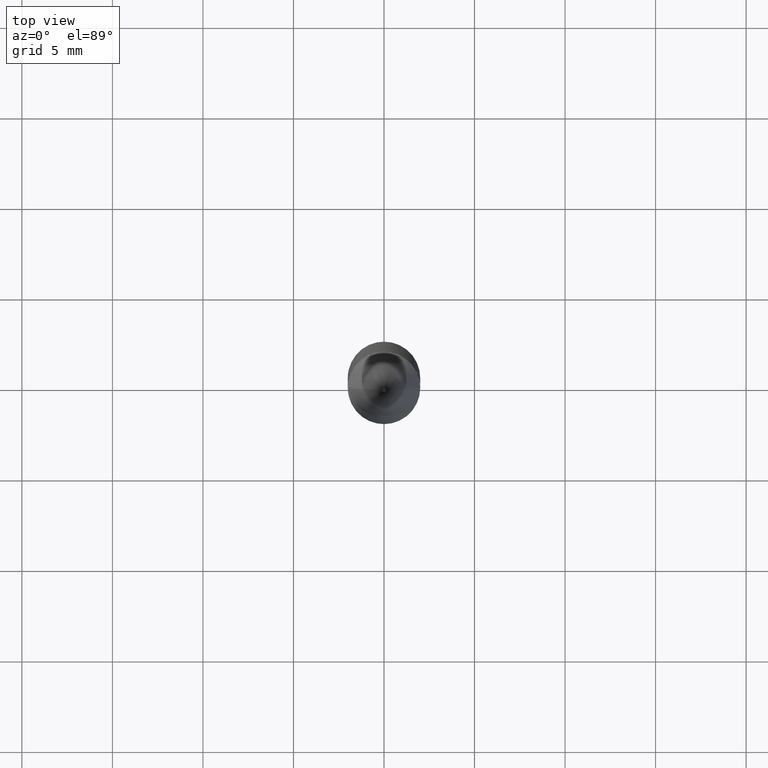
[diagram: clean part render]
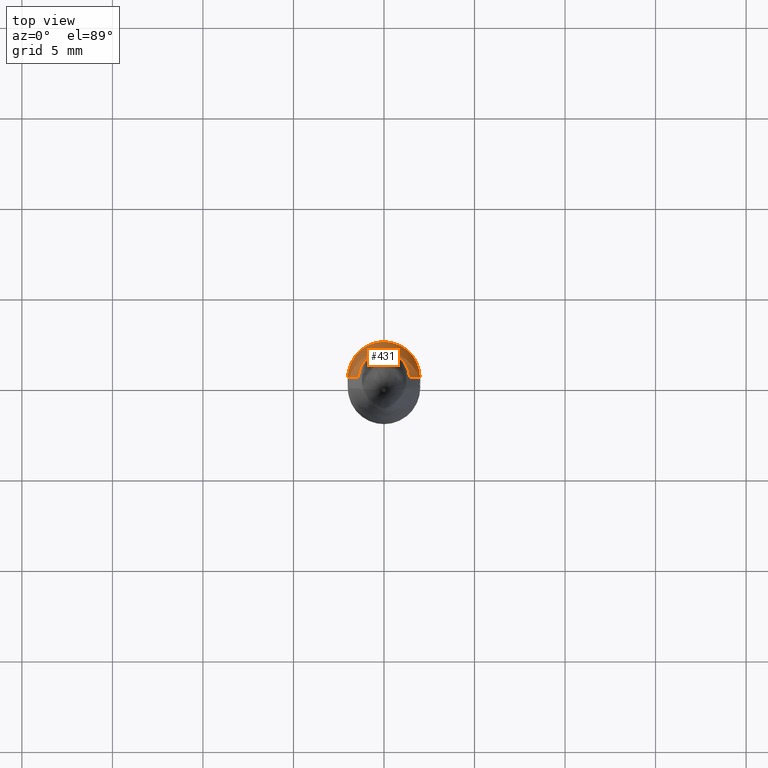
[diagram: same view with one face highlighted and labeled with its STEP entity id]
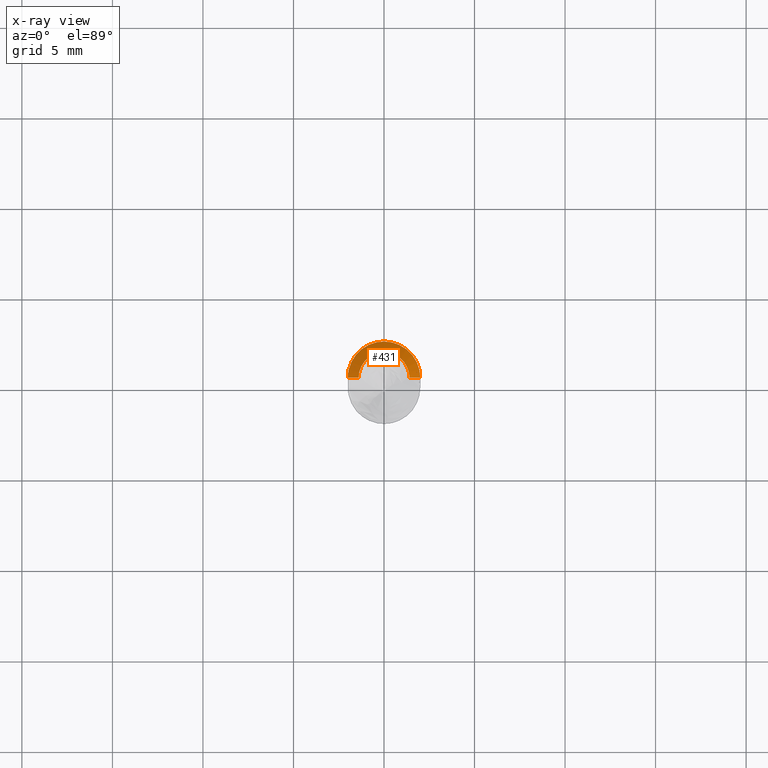
[diagram: x-ray of the same camera — body ghosted, the highlighted face saturated]
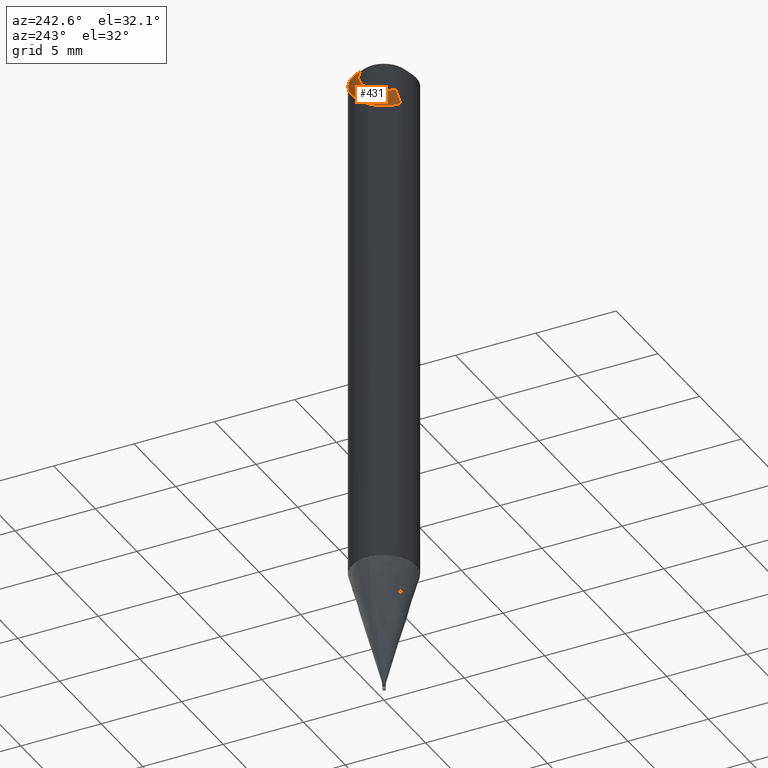
[diagram: same view with one face highlighted and labeled with its STEP entity id]
A machine part, top view. The second image highlights one B-rep face of the part: STEP entity #431.
The next image is the same camera in x-ray: the body ghosted, the highlighted face saturated — about 0% of this face is hidden behind the body in this view.
A second angle (auxiliary view) of the same face is appended — the face is thin or edge-on in the first view.
In plain terms, the highlighted face is a freeform B-spline surface patch.
Its self-contained STEP definition (entity closure, byte-faithful):
#200=CARTESIAN_POINT('',(2.0,0.0,31.81));
#201=CARTESIAN_POINT('',(2.0,2.0,31.81));
#202=CARTESIAN_POINT('',(0.0,2.0,31.81));
#203=CARTESIAN_POINT('',(-2.0,2.0,31.81));
#204=CARTESIAN_POINT('',(-2.0,0.0,31.81));
#205=CARTESIAN_POINT('',(1.4,0.0,32.41));
#206=CARTESIAN_POINT('',(1.4,1.4,32.41));
#207=CARTESIAN_POINT('',(0.0,1.4,32.41));
#208=CARTESIAN_POINT('',(-1.4,1.4,32.41));
#209=CARTESIAN_POINT('',(-1.4,0.0,32.41));
#412=(
BOUNDED_SURFACE()
B_SPLINE_SURFACE(1,2,(
(#200,#201,#202,#203,#204),
(#205,#206,#207,#208,#209)
), .UNSPECIFIED.,.F.,.F.,.F.)
B_SPLINE_SURFACE_WITH_KNOTS((2,2),(3,2,3),(
0.0,1.0),(
0.0,0.5,1.0), .UNSPECIFIED.)
GEOMETRIC_REPRESENTATION_ITEM()
RATIONAL_B_SPLINE_SURFACE(((1.0,0.707106781187,1.0,0.707106781187,1.0),
(1.0,0.707106781187,1.0,0.707106781187,1.0)
))
REPRESENTATION_ITEM('')
SURFACE()
);
#413=(
BOUNDED_CURVE()
B_SPLINE_CURVE(1,(#205,#200),.UNSPECIFIED.,.F.,.F.)
B_SPLINE_CURVE_WITH_KNOTS((2,2),
(0.0,1.0),.UNSPECIFIED.)
CURVE()
GEOMETRIC_REPRESENTATION_ITEM()
RATIONAL_B_SPLINE_CURVE((1.0,1.0))
REPRESENTATION_ITEM('')
);
#414=(
BOUNDED_CURVE()
B_SPLINE_CURVE(2,(#200,#201,#202,#203,#204),.UNSPECIFIED.,.F.,.F.)
B_SPLINE_CURVE_WITH_KNOTS((3,2,3),
(0.0,0.5,1.0),.UNSPECIFIED.)
CURVE()
GEOMETRIC_REPRESENTATION_ITEM()
RATIONAL_B_SPLINE_CURVE((1.0,0.707106781187,1.0,0.707106781187,1.0))
REPRESENTATION_ITEM('')
);
#415=(
BOUNDED_CURVE()
B_SPLINE_CURVE(1,(#204,#209),.UNSPECIFIED.,.F.,.F.)
B_SPLINE_CURVE_WITH_KNOTS((2,2),
(0.0,1.0),.UNSPECIFIED.)
CURVE()
GEOMETRIC_REPRESENTATION_ITEM()
RATIONAL_B_SPLINE_CURVE((1.0,1.0))
REPRESENTATION_ITEM('')
);
#416=(
BOUNDED_CURVE()
B_SPLINE_CURVE(2,(#209,#208,#207,#206,#205),.UNSPECIFIED.,.F.,.F.)
B_SPLINE_CURVE_WITH_KNOTS((3,2,3),
(0.0,0.5,1.0),.UNSPECIFIED.)
CURVE()
GEOMETRIC_REPRESENTATION_ITEM()
RATIONAL_B_SPLINE_CURVE((1.0,0.707106781187,1.0,0.707106781187,1.0))
REPRESENTATION_ITEM('')
);
#417=VERTEX_POINT('',#200);
#418=VERTEX_POINT('',#204);
#419=VERTEX_POINT('',#205);
#420=VERTEX_POINT('',#209);
#421=EDGE_CURVE('',#419,#417,#413,.T.);
#422=EDGE_CURVE('',#417,#418,#414,.T.);
#423=EDGE_CURVE('',#418,#420,#415,.T.);
#424=EDGE_CURVE('',#420,#419,#416,.T.);
#425=ORIENTED_EDGE('',*,*,#421,.T.);
#426=ORIENTED_EDGE('',*,*,#422,.T.);
#427=ORIENTED_EDGE('',*,*,#423,.T.);
#428=ORIENTED_EDGE('',*,*,#424,.T.);
#429=EDGE_LOOP('',(#425,#426,#427,#428));
#430=FACE_OUTER_BOUND('',#429,.T.);
#431=ADVANCED_FACE('',(#430),#412,.T.);